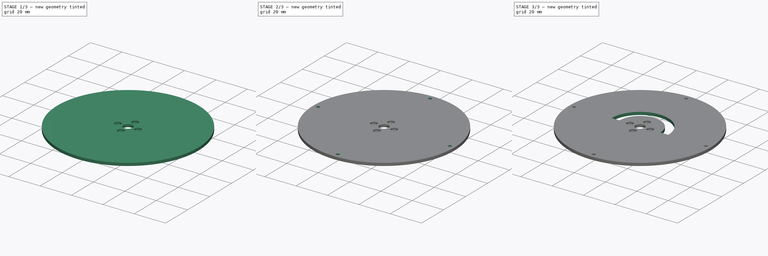
[diagram: build sequence overview — one tinted view per stage of 3, left to right]
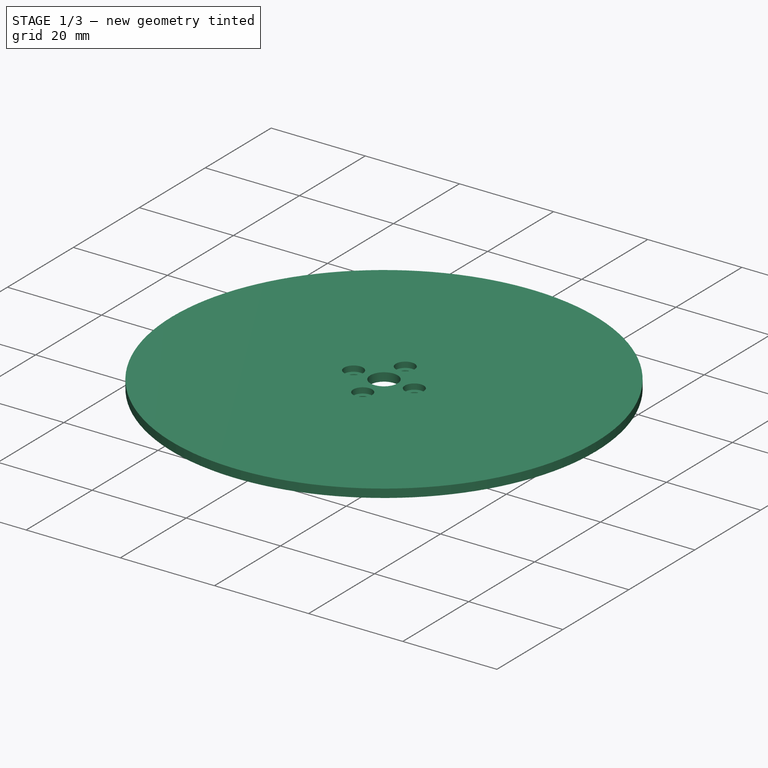
[diagram: stage 1 of 3 — iso view after this stage's code; geometry added in this stage tinted green]
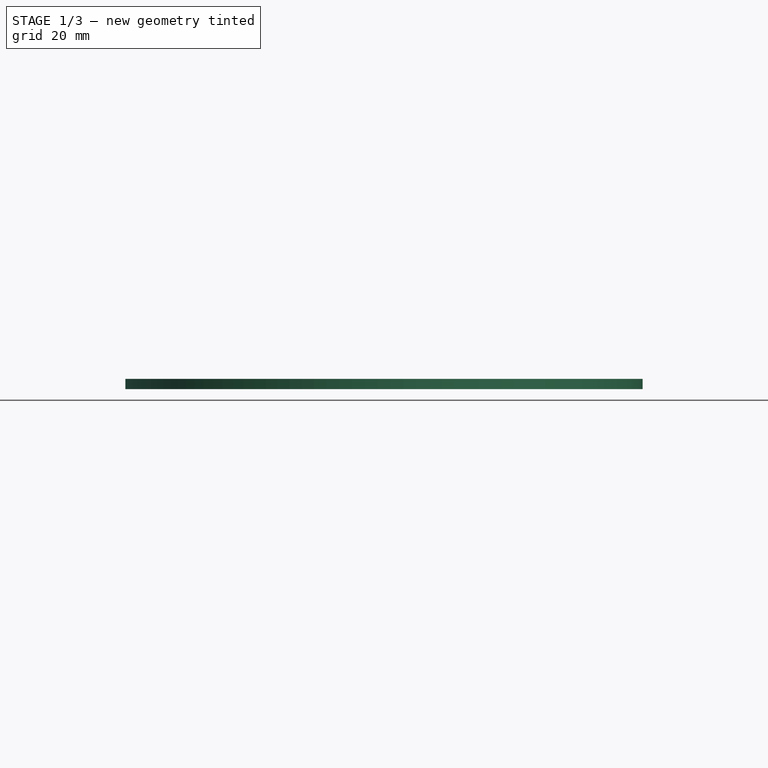
[diagram: stage 1 of 3 — front view after this stage's code; geometry added in this stage tinted green]
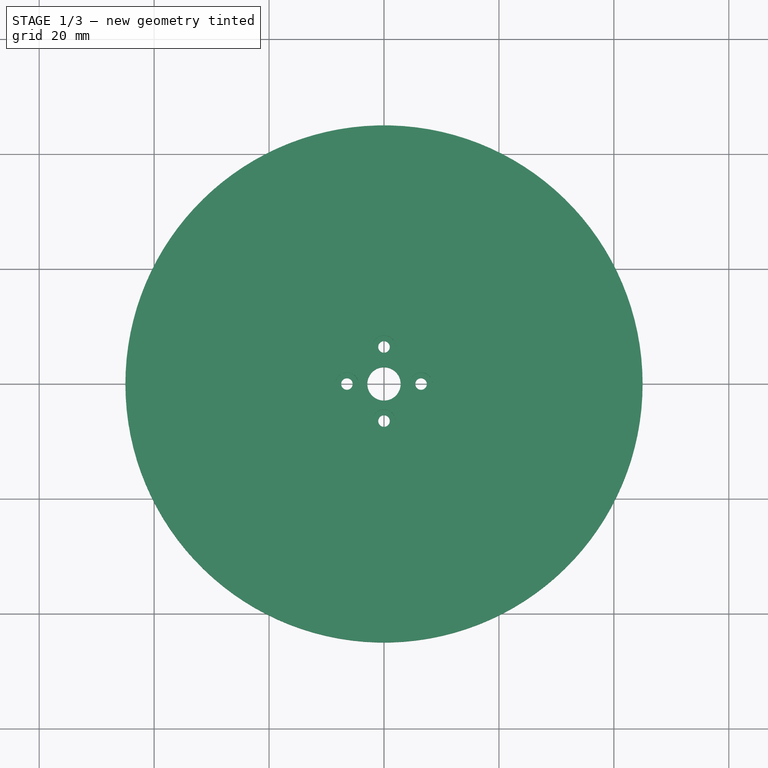
[diagram: stage 1 of 3 — top view after this stage's code; geometry added in this stage tinted green]
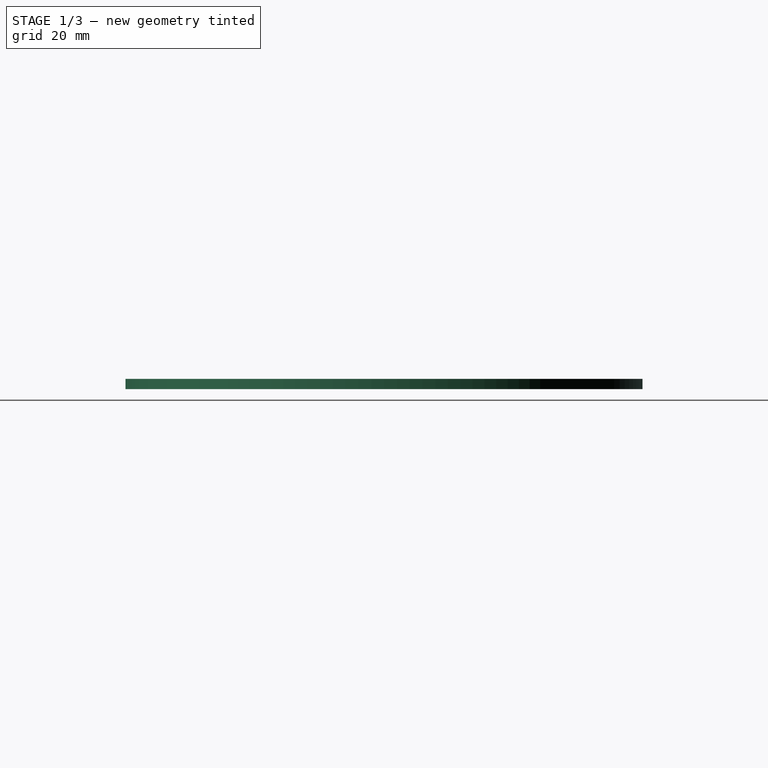
[diagram: stage 1 of 3 — right view after this stage's code; geometry added in this stage tinted green]
FCSTD DOCUMENT  (FreeCAD 0.16R4928 (Git))
Label: fixed_plate
License: All rights reserved
LicenseURL: http://en.wikipedia.org/wiki/All_rights_reserved
objects: Sketcher::SketchObject×5, PartDesign::Pocket×4, PartDesign::Pad×1
note: 15 computed .brp shape members not serialized (recipe doc carries the construction recipe); baked Part::Feature solids carry a one-line shape summary decoded from their .brp

FEATURE [Sketcher::SketchObject] Sketch
  sketch-geometry (8):
    g0: Circle CenterX=0 CenterY=6.45 CenterZ=0 NormalX=0 NormalY=0 NormalZ=1 Radius=1
    g1: Circle CenterX=-6.45 CenterY=0 CenterZ=0 NormalX=0 NormalY=0 NormalZ=1 Radius=1
    g2: Circle CenterX=6.45 CenterY=0 CenterZ=0 NormalX=0 NormalY=0 NormalZ=1 Radius=1
    g3: Circle CenterX=0 CenterY=-6.45 CenterZ=0 NormalX=0 NormalY=0 NormalZ=1 Radius=1
    g4: LineSegment [constr] StartX=-6.45 StartY=0 StartZ=0 EndX=6.45 EndY=0 EndZ=0
    g5: LineSegment [constr] StartX=0 StartY=6.45 StartZ=0 EndX=0 EndY=-6.45 EndZ=0
    g6: Circle CenterX=0 CenterY=0 CenterZ=0 NormalX=0 NormalY=0 NormalZ=1 Radius=2.9
    g7: Circle CenterX=0 CenterY=0 CenterZ=0 NormalX=0 NormalY=0 NormalZ=1 Radius=45
  constraints (18):
    c: PointOnObject(g0,g-2)
    c: PointOnObject(g1,g-1)
    c: Equal(g0,g3)
    c: Equal(g3,g2)
    c: Equal(g2,g1)
    c: Symmetric(g2,g1,g-2)
    c: Symmetric(g3,g0,g-1)
    c: Coincident(g4,g1)
    c: Coincident(g4,g2)
    c: Coincident(g5,g0)
    c: Coincident(g5,g3)
    c: Equal(g5,g4)
    c: Distance(g4) = 12.9
    c: Radius(g1) = 1
    c: Coincident(g6,g-1)
    c: Radius(g6) = 2.9
    c: Coincident(g7,g-1)
    c: Radius(g7) = 45
FEATURE [PartDesign::Pad] Pad
  Length = 1.8
  Length2 = 100
  Sketch = -> Sketch
  Type = 0
FEATURE [Sketcher::SketchObject] Sketch001
  ExternalGeometry = -> [Pad]
  Placement = pos=(0,0,1.8) rot=(0,0,1;0rad)
  Support = -> Pad [Face8]
  sketch-geometry (4):
    g0: Circle CenterX=-6.45 CenterY=0 CenterZ=0 NormalX=0 NormalY=0 NormalZ=1 Radius=2
    g1: Circle CenterX=0 CenterY=6.45 CenterZ=0 NormalX=0 NormalY=0 NormalZ=1 Radius=2
    g2: Circle CenterX=6.45 CenterY=0 CenterZ=0 NormalX=0 NormalY=0 NormalZ=1 Radius=2
    g3: Circle CenterX=0 CenterY=-6.45 CenterZ=0 NormalX=0 NormalY=0 NormalZ=1 Radius=2
  constraints (8):
    c: Coincident(g0,g-4)
    c: Coincident(g1,g-3)
    c: Coincident(g2,g-5)
    c: Coincident(g3,g-6)
    c: Equal(g3,g2)
    c: Equal(g2,g0)
    c: Equal(g0,g1)
    c: Radius(g0) = 2
FEATURE [PartDesign::Pocket] Pocket
  Length = 1.2
  Sketch = -> Sketch001
  Type = 0
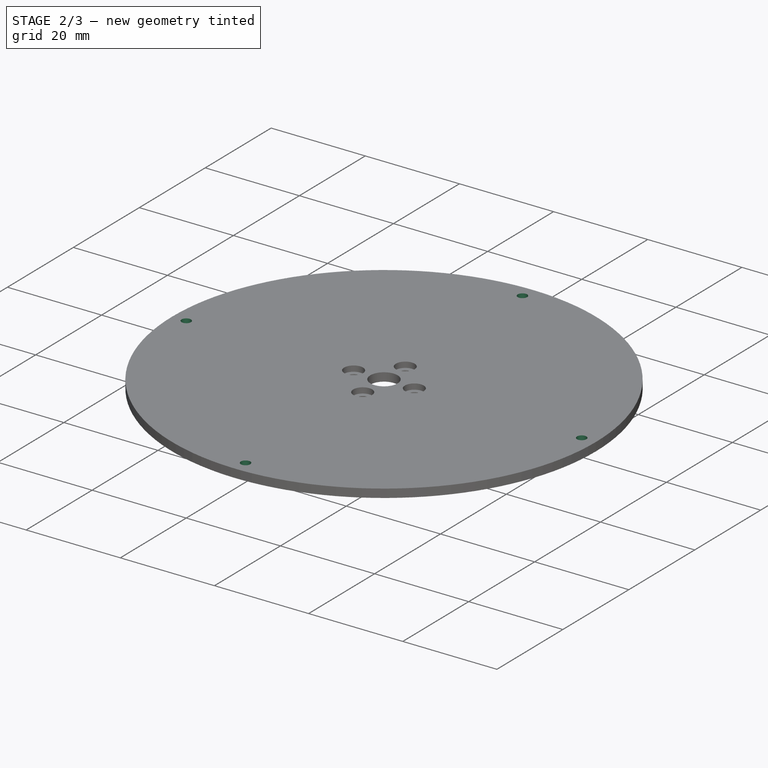
[diagram: stage 2 of 3 — iso view after this stage's code; geometry added in this stage tinted green]
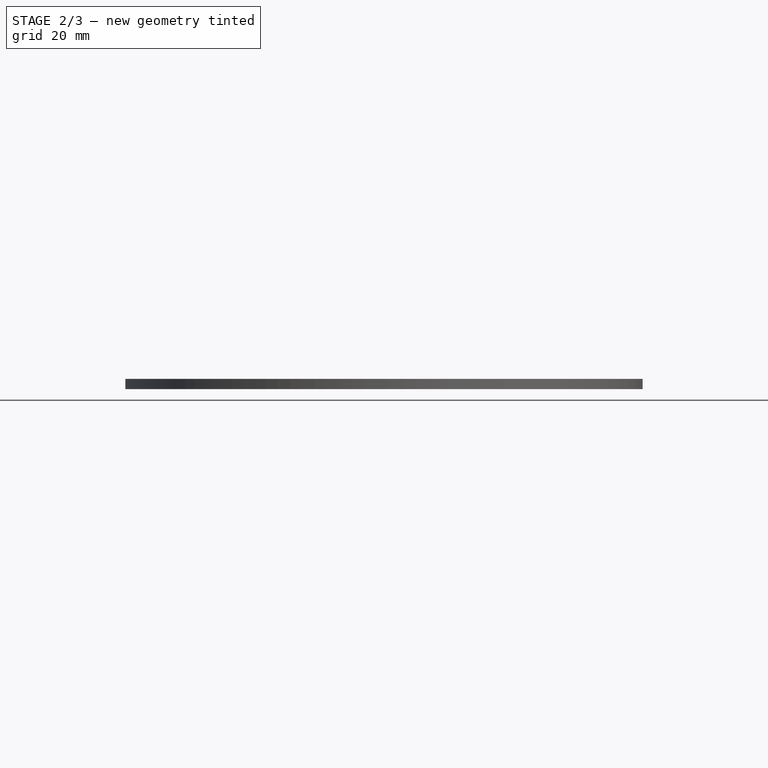
[diagram: stage 2 of 3 — front view after this stage's code; geometry added in this stage tinted green]
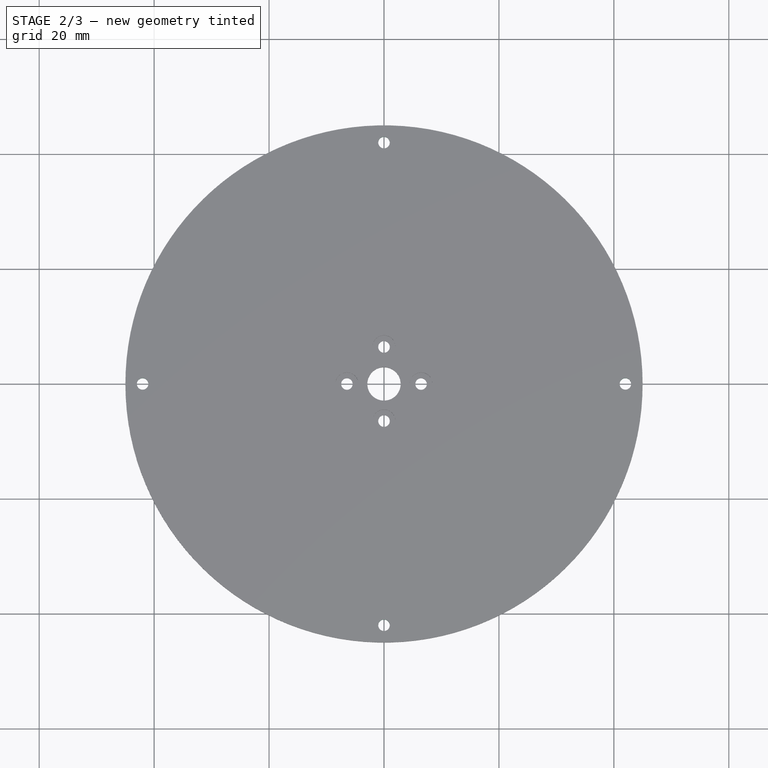
[diagram: stage 2 of 3 — top view after this stage's code; geometry added in this stage tinted green]
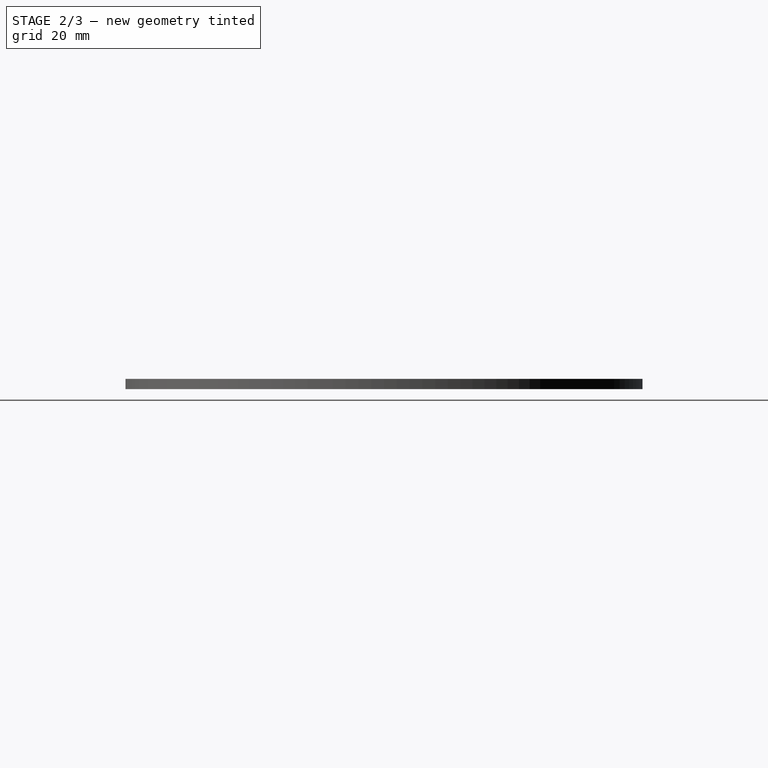
[diagram: stage 2 of 3 — right view after this stage's code; geometry added in this stage tinted green]
FEATURE [Sketcher::SketchObject] Sketch002
  Placement = pos=(0,0,1.8) rot=(0,0,1;0rad)
  Support = -> Pocket [Face3]
  sketch-geometry (8):
    g0: Circle CenterX=-42 CenterY=0 CenterZ=0 NormalX=0 NormalY=0 NormalZ=1 Radius=1
    g1: Circle CenterX=42 CenterY=0 CenterZ=0 NormalX=0 NormalY=0 NormalZ=1 Radius=1
    g2: Circle CenterX=0 CenterY=42 CenterZ=0 NormalX=0 NormalY=0 NormalZ=1 Radius=1
    g3: Circle CenterX=0 CenterY=-42 CenterZ=0 NormalX=0 NormalY=0 NormalZ=1 Radius=1
    g4: LineSegment [constr] StartX=0 StartY=42 StartZ=0 EndX=0 EndY=0 EndZ=0
    g5: LineSegment [constr] StartX=-42 StartY=0 StartZ=0 EndX=0 EndY=0 EndZ=0
    g6: LineSegment [constr] StartX=0 StartY=-42 StartZ=0 EndX=0 EndY=0 EndZ=0
    g7: LineSegment [constr] StartX=0 StartY=0 StartZ=0 EndX=42 EndY=0 EndZ=0
  constraints (20):
    c: PointOnObject(g0,g-1)
    c: Radius(g0) = 1
    c: DistanceX(g-1,g0) = -42
    c: PointOnObject(g1,g-1)
    c: PointOnObject(g3,g-2)
    c: PointOnObject(g2,g-2)
    c: Coincident(g4,g2)
    c: Coincident(g4,g-1)
    c: Coincident(g5,g0)
    c: Coincident(g5,g-1)
    c: Coincident(g6,g3)
    c: Coincident(g6,g-1)
    c: Coincident(g7,g-1)
    c: Coincident(g7,g1)
    c: Equal(g5,g7)
    c: Equal(g7,g4)
    c: Equal(g4,g6)
    c: Equal(g2,g1)
    c: Equal(g1,g3)
    c: Equal(g3,g0)
FEATURE [PartDesign::Pocket] Pocket001
  Length = 5
  Sketch = -> Sketch002
  Type = 1
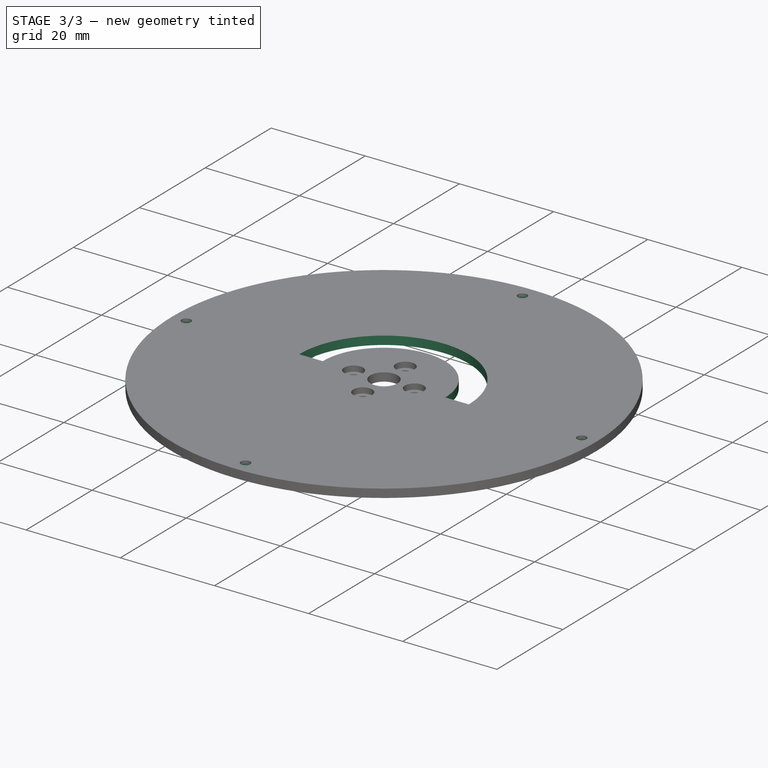
[diagram: stage 3 of 3 — iso view after this stage's code; geometry added in this stage tinted green]
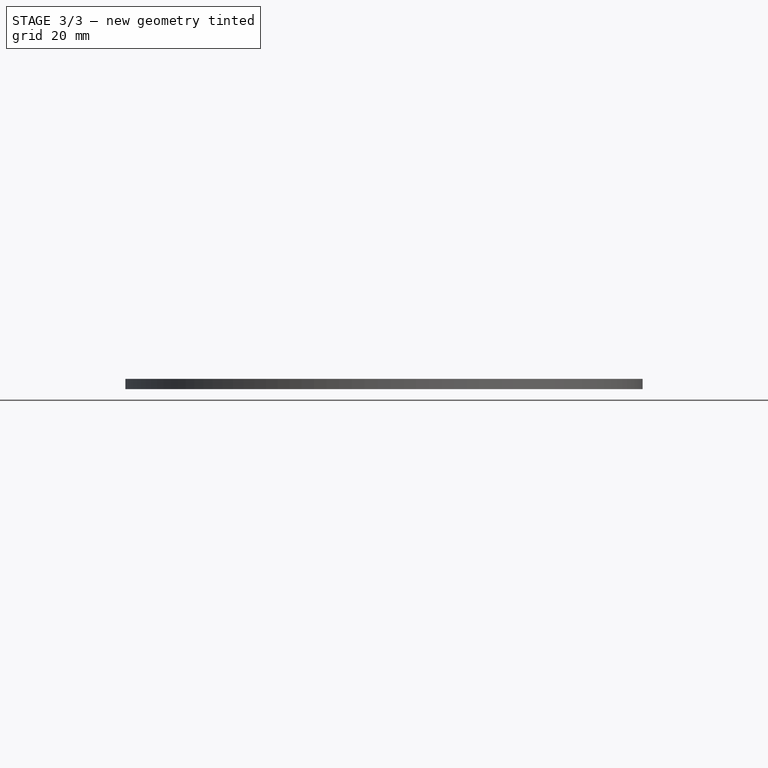
[diagram: stage 3 of 3 — front view after this stage's code; geometry added in this stage tinted green]
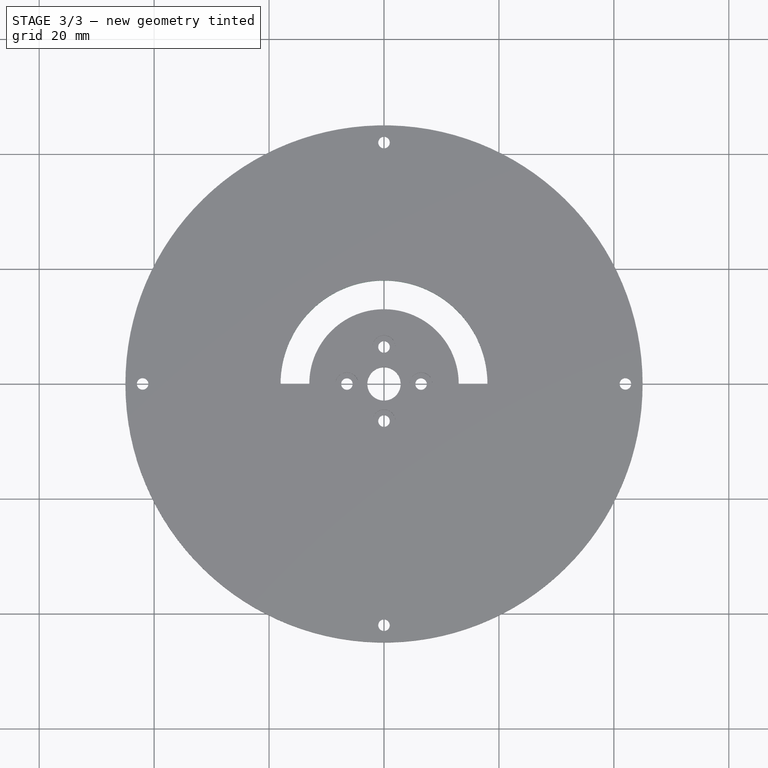
[diagram: stage 3 of 3 — top view after this stage's code; geometry added in this stage tinted green]
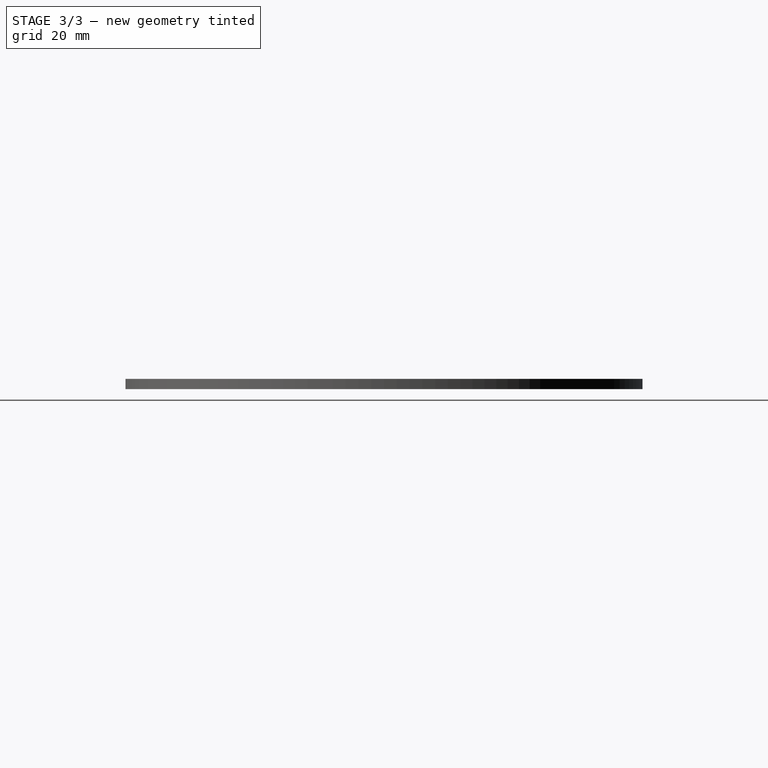
[diagram: stage 3 of 3 — right view after this stage's code; geometry added in this stage tinted green]
FEATURE [Sketcher::SketchObject] Sketch003
  ExternalGeometry = -> [Pocket001]
  Placement = pos=(0,0,0) rot=(1,0,0;3.14159rad)
  Support = -> Pocket001 [Face2]
  sketch-geometry (4):
    g0: Circle CenterX=-42 CenterY=0 CenterZ=0 NormalX=0 NormalY=0 NormalZ=1 Radius=2
    g1: Circle CenterX=0 CenterY=42 CenterZ=0 NormalX=0 NormalY=0 NormalZ=1 Radius=2
    g2: Circle CenterX=42 CenterY=0 CenterZ=0 NormalX=0 NormalY=0 NormalZ=1 Radius=2
    g3: Circle CenterX=0 CenterY=-42 CenterZ=0 NormalX=0 NormalY=0 NormalZ=1 Radius=2
  constraints (8):
    c: Coincident(g0,g-3)
    c: Radius(g0) = 2
    c: Coincident(g1,g-6)
    c: Coincident(g2,g-5)
    c: Coincident(g3,g-4)
    c: Equal(g1,g2)
    c: Equal(g2,g3)
    c: Equal(g3,g0)
FEATURE [PartDesign::Pocket] Pocket002
  Length = 1.2
  Sketch = -> Sketch003
  Type = 0
FEATURE [Sketcher::SketchObject] Sketch004
  Placement = pos=(0,0,0) rot=(1,0,0;3.14159rad)
  Support = -> Pocket002 [Face2]
  sketch-geometry (4):
    g0: ArcOfCircle CenterX=0 CenterY=0 CenterZ=0 NormalX=0 NormalY=0 NormalZ=1 Radius=13 StartAngle=3.14159 EndAngle=6.28319
    g1: ArcOfCircle CenterX=0 CenterY=0 CenterZ=0 NormalX=0 NormalY=0 NormalZ=1 Radius=18 StartAngle=3.14159 EndAngle=6.28319
    g2: LineSegment StartX=-18 StartY=0 StartZ=0 EndX=-13 EndY=0 EndZ=0
    g3: LineSegment StartX=13 StartY=0 StartZ=0 EndX=18 EndY=0 EndZ=0
  constraints (12):
    c: Coincident(g0,g-1)
    c: PointOnObject(g0,g-1)
    c: PointOnObject(g0,g-1)
    c: Coincident(g1,g-1)
    c: PointOnObject(g1,g-1)
    c: PointOnObject(g1,g-1)
    c: Coincident(g2,g1)
    c: Coincident(g2,g0)
    c: Coincident(g3,g0)
    c: Coincident(g3,g1)
    c: Radius(g0) = 13
    c: Radius(g1) = 18
FEATURE [PartDesign::Pocket] Pocket003
  Length = 5
  Sketch = -> Sketch004
  Type = 1
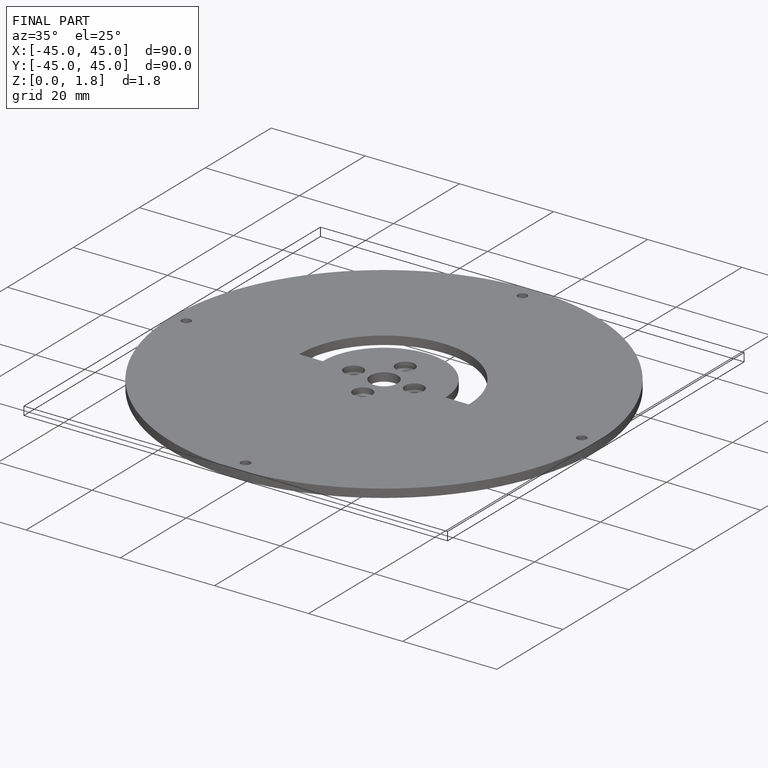
[diagram: finished part — iso view with bounding-box wireframe]
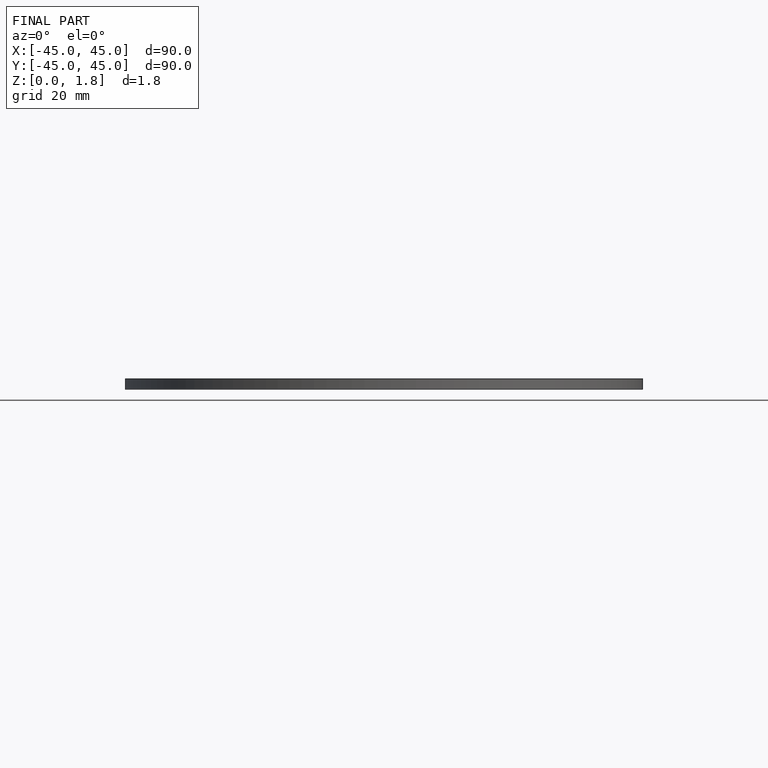
[diagram: finished part — front view with bounding-box wireframe]
